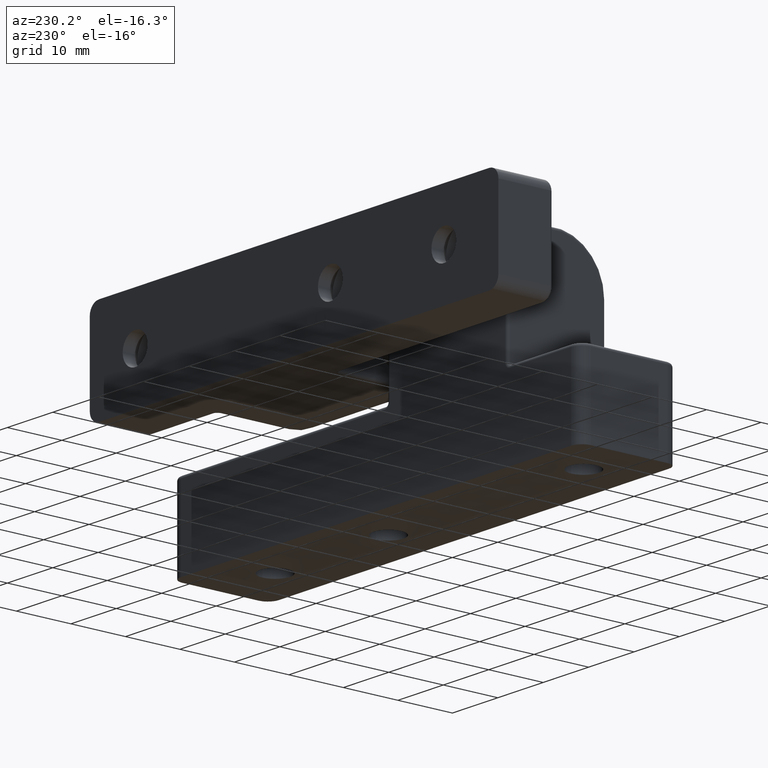
[diagram: clean part render]
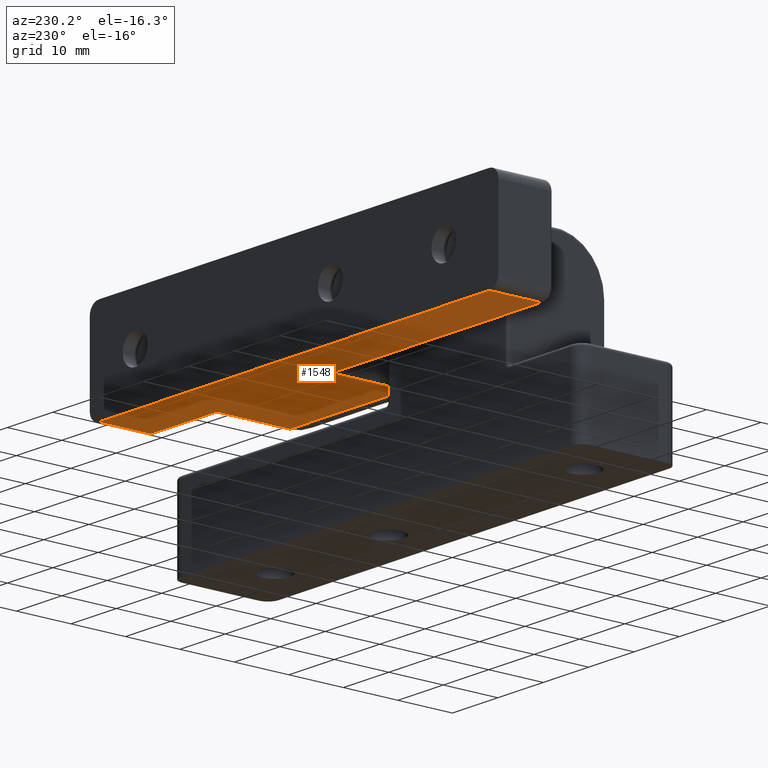
[diagram: same view with one face highlighted and labeled with its STEP entity id]
A machine part, auxiliary view. The second image highlights one B-rep face of the part: STEP entity #1548.
In plain terms, the highlighted planar face has unit normal (0, 0, -1).
Its self-contained STEP definition (entity closure, byte-faithful):
#107=PLANE('',#1751);
#157=LINE('',#2648,#233);
#164=LINE('',#2677,#240);
#172=LINE('',#2700,#248);
#173=LINE('',#2704,#249);
#174=LINE('',#2706,#250);
#175=LINE('',#2710,#251);
#176=LINE('',#2712,#252);
#177=LINE('',#2713,#253);
#233=VECTOR('',#2145,13.5);
#240=VECTOR('',#2180,12.5);
#248=VECTOR('',#2206,9.5);
#249=VECTOR('',#2211,25.5);
#250=VECTOR('',#2212,12.5);
#251=VECTOR('',#2215,45.);
#252=VECTOR('',#2216,9.5);
#253=VECTOR('',#2217,86.);
#393=FACE_OUTER_BOUND('',#524,.T.);
#524=EDGE_LOOP('',(#1314,#1315,#1316,#1317,#1318,#1319,#1320,#1321,#1322,
#1323));
#652=CIRCLE('',#1721,0.999999999999996);
#670=CIRCLE('',#1752,1.);
#784=VERTEX_POINT('',#2635);
#785=VERTEX_POINT('',#2636);
#788=VERTEX_POINT('',#2644);
#797=VERTEX_POINT('',#2675);
#803=VERTEX_POINT('',#2699);
#804=VERTEX_POINT('',#2703);
#805=VERTEX_POINT('',#2705);
#806=VERTEX_POINT('',#2707);
#807=VERTEX_POINT('',#2709);
#808=VERTEX_POINT('',#2711);
#954=EDGE_CURVE('',#784,#785,#652,.T.);
#960=EDGE_CURVE('',#785,#788,#157,.T.);
#975=EDGE_CURVE('',#797,#784,#164,.T.);
#987=EDGE_CURVE('',#788,#803,#172,.T.);
#989=EDGE_CURVE('',#797,#804,#173,.T.);
#990=EDGE_CURVE('',#805,#804,#174,.T.);
#991=EDGE_CURVE('',#806,#805,#670,.T.);
#992=EDGE_CURVE('',#807,#806,#175,.T.);
#993=EDGE_CURVE('',#808,#807,#176,.T.);
#994=EDGE_CURVE('',#808,#803,#177,.T.);
#1314=ORIENTED_EDGE('',*,*,#960,.F.);
#1315=ORIENTED_EDGE('',*,*,#954,.F.);
#1316=ORIENTED_EDGE('',*,*,#975,.F.);
#1317=ORIENTED_EDGE('',*,*,#989,.T.);
#1318=ORIENTED_EDGE('',*,*,#990,.F.);
#1319=ORIENTED_EDGE('',*,*,#991,.F.);
#1320=ORIENTED_EDGE('',*,*,#992,.F.);
#1321=ORIENTED_EDGE('',*,*,#993,.F.);
#1322=ORIENTED_EDGE('',*,*,#994,.T.);
#1323=ORIENTED_EDGE('',*,*,#987,.F.);
#1548=ADVANCED_FACE('',(#393),#107,.T.);
#1721=AXIS2_PLACEMENT_3D('',#2637,#2132,#2133);
#1751=AXIS2_PLACEMENT_3D('',#2702,#2209,#2210);
#1752=AXIS2_PLACEMENT_3D('',#2708,#2213,#2214);
#2132=DIRECTION('center_axis',(0.,1.,0.));
#2133=DIRECTION('ref_axis',(0.707106781186546,0.,-0.707106781186549));
#2145=DIRECTION('',(-1.,0.,0.));
#2180=DIRECTION('',(0.,0.,-1.));
#2206=DIRECTION('',(0.,0.,-1.));
#2209=DIRECTION('center_axis',(0.,1.,0.));
#2210=DIRECTION('ref_axis',(-1.,0.,0.));
#2211=DIRECTION('',(1.,0.,0.));
#2212=DIRECTION('',(0.,0.,1.));
#2213=DIRECTION('center_axis',(0.,1.,0.));
#2214=DIRECTION('ref_axis',(-0.707106781186547,0.,-0.707106781186547));
#2215=DIRECTION('',(-1.,0.,0.));
#2216=DIRECTION('',(0.,0.,1.));
#2217=DIRECTION('',(-1.,0.,0.));
#2635=CARTESIAN_POINT('',(-28.5,9.,10.5));
#2636=CARTESIAN_POINT('',(-29.5,9.,9.5));
#2637=CARTESIAN_POINT('Origin',(-29.5,9.,10.5));
#2644=CARTESIAN_POINT('',(-43.,9.,9.5));
#2648=CARTESIAN_POINT('',(22.5,9.,9.5));
#2675=CARTESIAN_POINT('',(-28.5,9.,23.));
#2677=CARTESIAN_POINT('',(-28.5,9.,9.34144852681456));
#2699=CARTESIAN_POINT('',(-43.,9.,0.));
#2700=CARTESIAN_POINT('',(-43.,9.,0.));
#2702=CARTESIAN_POINT('Origin',(45.,9.,0.));
#2703=CARTESIAN_POINT('',(-3.,9.,23.));
#2704=CARTESIAN_POINT('',(-29.,9.,23.));
#2705=CARTESIAN_POINT('',(-3.,9.,10.5));
#2706=CARTESIAN_POINT('',(-3.,9.,9.34144852681456));
#2707=CARTESIAN_POINT('',(-2.,9.,9.5));
#2708=CARTESIAN_POINT('Origin',(-2.,9.,10.5));
#2709=CARTESIAN_POINT('',(43.,9.,9.5));
#2710=CARTESIAN_POINT('',(22.5,9.,9.5));
#2711=CARTESIAN_POINT('',(43.,9.,0.));
#2712=CARTESIAN_POINT('',(43.,9.,0.));
#2713=CARTESIAN_POINT('',(45.,9.,0.));